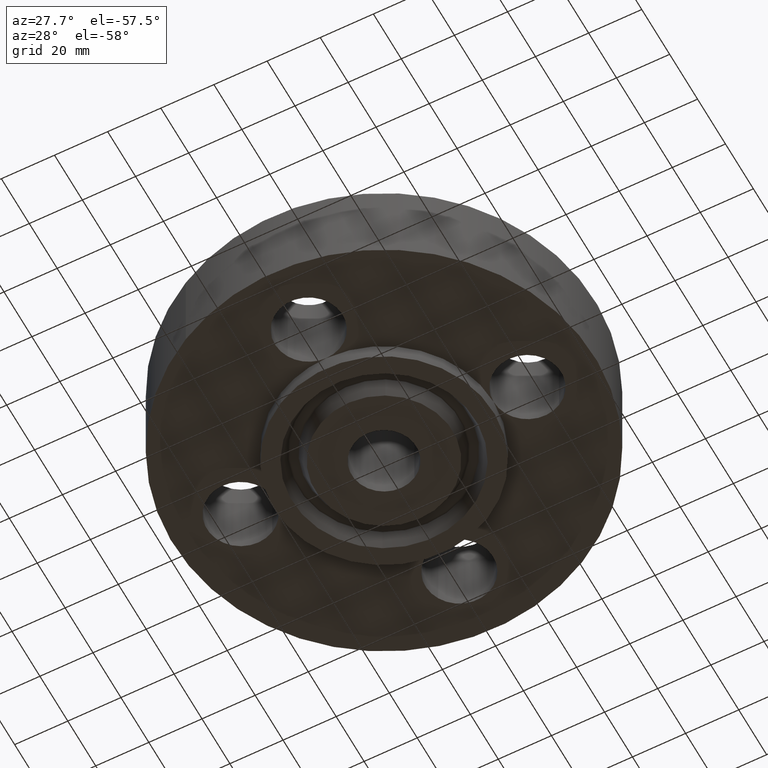
[diagram: clean part render]
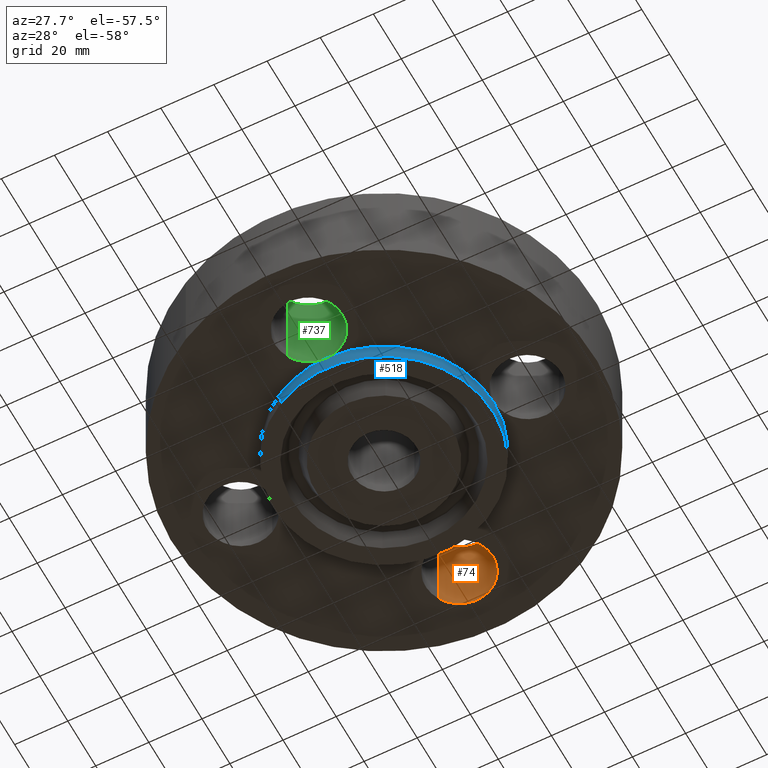
[diagram: same view with three faces highlighted in distinct colors, each labeled with its STEP entity id]
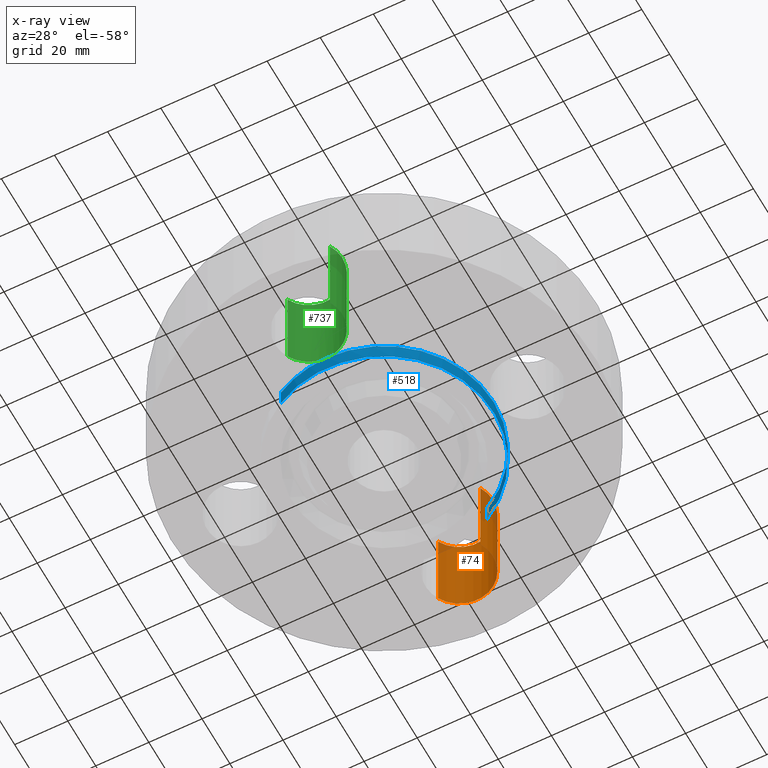
[diagram: x-ray of the same camera — body ghosted, the three highlighted faces saturated]
A machine part, auxiliary view with three faces highlighted in distinct colors.
The next image is the same camera in x-ray (body ghosted, the three faces saturated) — at least one of them is partly hidden behind the body in this view.
Their STEP definitions:

[orange] entity #74 — the highlighted cylindrical surface (partial cylindrical patch) has radius 12.7 mm, axis along (0, -0, -1).
#38=AXIS2_PLACEMENT_3D('Cylinder Axis2P3D',#35,#36,#37) ;
#51=AXIS2_PLACEMENT_3D('Circle Axis2P3D',#49,#50,$) ;
#65=AXIS2_PLACEMENT_3D('Circle Axis2P3D',#63,#64,$) ;
#35=CARTESIAN_POINT('Axis2P3D Location',(0.,2.12500000001,1.37606299213)) ;
#40=CARTESIAN_POINT('Line Origine',(-0.438791280947,2.36471276931,0.690000000003)) ;
#44=CARTESIAN_POINT('Vertex',(-0.438791280947,2.36471276931,0.)) ;
#46=CARTESIAN_POINT('Vertex',(-0.438791280947,2.36471276931,1.38000000001)) ;
#49=CARTESIAN_POINT('Axis2P3D Location',(0.,2.12500000001,0.)) ;
#53=CARTESIAN_POINT('Vertex',(0.438791280947,1.88528723071,0.)) ;
#56=CARTESIAN_POINT('Line Origine',(0.438791280947,1.88528723071,0.690000000003)) ;
#60=CARTESIAN_POINT('Vertex',(0.438791280947,1.88528723071,1.38000000001)) ;
#63=CARTESIAN_POINT('Axis2P3D Location',(0.,2.12500000001,1.38000000001)) ;
#36=DIRECTION('Axis2P3D Direction',(0.,-0.,-0.0393700787402)) ;
#37=DIRECTION('Axis2P3D XDirection',(0.0345504945626,-0.0188750212049,0.)) ;
#41=DIRECTION('Vector Direction',(0.,0.,-0.0393700787402)) ;
#50=DIRECTION('Axis2P3D Direction',(0.,-0.,-0.0393700787402)) ;
#57=DIRECTION('Vector Direction',(0.,0.,-0.0393700787402)) ;
#64=DIRECTION('Axis2P3D Direction',(0.,-0.,-0.0393700787402)) ;
#42=VECTOR('Line Direction',#41,0.0393700787402) ;
#58=VECTOR('Line Direction',#57,0.0393700787402) ;
#69=ORIENTED_EDGE('',*,*,#48,.F.) ;
#70=ORIENTED_EDGE('',*,*,#55,.T.) ;
#71=ORIENTED_EDGE('',*,*,#62,.T.) ;
#72=ORIENTED_EDGE('',*,*,#67,.F.) ;
#74=ADVANCED_FACE('PartBody',(#73),#39,.F.) ;
#52=CIRCLE('generated circle',#51,0.500000000002) ;
#66=CIRCLE('generated circle',#65,0.500000000002) ;
#39=CYLINDRICAL_SURFACE('generated cylinder',#38,0.500000000002) ;
#48=EDGE_CURVE('',#45,#47,#43,.F.) ;
#55=EDGE_CURVE('',#45,#54,#52,.T.) ;
#62=EDGE_CURVE('',#54,#61,#59,.F.) ;
#67=EDGE_CURVE('',#47,#61,#66,.T.) ;
#68=EDGE_LOOP('',(#69,#70,#71,#72)) ;
#73=FACE_OUTER_BOUND('',#68,.T.) ;
#43=LINE('Line',#40,#42) ;
#59=LINE('Line',#56,#58) ;
#45=VERTEX_POINT('',#44) ;
#47=VERTEX_POINT('',#46) ;
#54=VERTEX_POINT('',#53) ;
#61=VERTEX_POINT('',#60) ;

[blue] entity #518 — the highlighted cylindrical surface (partial cylindrical patch) has radius 41.275 mm, axis along (0, 0, -1).
#435=AXIS2_PLACEMENT_3D('Cylinder Axis2P3D',#432,#433,#434) ;
#488=AXIS2_PLACEMENT_3D('Circle Axis2P3D',#486,#487,$) ;
#493=AXIS2_PLACEMENT_3D('Circle Axis2P3D',#491,#492,$) ;
#500=AXIS2_PLACEMENT_3D('Circle Axis2P3D',#498,#499,$) ;
#507=AXIS2_PLACEMENT_3D('Circle Axis2P3D',#505,#506,$) ;
#432=CARTESIAN_POINT('Axis2P3D Location',(0.,0.,1.62500000001)) ;
#441=CARTESIAN_POINT('Vertex',(-0.779066500235,-1.42607166308,-0.250000000001)) ;
#443=CARTESIAN_POINT('Vertex',(0.779066500235,1.42607166308,-0.250000000001)) ;
#446=CARTESIAN_POINT('Line Origine',(-0.779066500235,-1.42607166308,-0.125000000001)) ;
#450=CARTESIAN_POINT('Vertex',(-0.779066500235,-1.42607166308,0.)) ;
#469=CARTESIAN_POINT('Vertex',(0.779066500235,1.42607166308,0.)) ;
#472=CARTESIAN_POINT('Line Origine',(0.779066500235,1.42607166308,-0.125000000001)) ;
#486=CARTESIAN_POINT('Axis2P3D Location',(0.,0.,-0.250000000001)) ;
#491=CARTESIAN_POINT('Axis2P3D Location',(0.,0.,0.)) ;
#495=CARTESIAN_POINT('Vertex',(1.62500000001,2.79741234551E-016,0.)) ;
#498=CARTESIAN_POINT('Axis2P3D Location',(0.,0.,0.)) ;
#502=CARTESIAN_POINT('Vertex',(2.05376551774E-016,-1.62500000001,0.)) ;
#505=CARTESIAN_POINT('Axis2P3D Location',(0.,0.,0.)) ;
#433=DIRECTION('Axis2P3D Direction',(0.,0.,-0.0393700787402)) ;
#434=DIRECTION('Axis2P3D XDirection',(0.0188750212049,0.0345504945626,0.)) ;
#447=DIRECTION('Vector Direction',(0.,0.,-0.0393700787402)) ;
#473=DIRECTION('Vector Direction',(0.,0.,-0.0393700787402)) ;
#487=DIRECTION('Axis2P3D Direction',(0.,0.,-0.0393700787402)) ;
#492=DIRECTION('Axis2P3D Direction',(0.,0.,-0.0393700787402)) ;
#499=DIRECTION('Axis2P3D Direction',(0.,0.,-0.0393700787402)) ;
#506=DIRECTION('Axis2P3D Direction',(0.,0.,-0.0393700787402)) ;
#448=VECTOR('Line Direction',#447,0.0393700787402) ;
#474=VECTOR('Line Direction',#473,0.0393700787402) ;
#511=ORIENTED_EDGE('',*,*,#490,.F.) ;
#512=ORIENTED_EDGE('',*,*,#476,.T.) ;
#513=ORIENTED_EDGE('',*,*,#497,.T.) ;
#514=ORIENTED_EDGE('',*,*,#504,.T.) ;
#515=ORIENTED_EDGE('',*,*,#509,.T.) ;
#516=ORIENTED_EDGE('',*,*,#452,.F.) ;
#518=ADVANCED_FACE('PartBody',(#517),#436,.T.) ;
#489=CIRCLE('generated circle',#488,1.62500000001) ;
#494=CIRCLE('generated circle',#493,1.62500000001) ;
#501=CIRCLE('generated circle',#500,1.62500000001) ;
#508=CIRCLE('generated circle',#507,1.62500000001) ;
#436=CYLINDRICAL_SURFACE('generated cylinder',#435,1.62500000001) ;
#452=EDGE_CURVE('',#442,#451,#449,.F.) ;
#476=EDGE_CURVE('',#444,#470,#475,.F.) ;
#490=EDGE_CURVE('',#444,#442,#489,.T.) ;
#497=EDGE_CURVE('',#470,#496,#494,.T.) ;
#504=EDGE_CURVE('',#496,#503,#501,.T.) ;
#509=EDGE_CURVE('',#503,#451,#508,.T.) ;
#510=EDGE_LOOP('',(#511,#512,#513,#514,#515,#516)) ;
#517=FACE_OUTER_BOUND('',#510,.T.) ;
#449=LINE('Line',#446,#448) ;
#475=LINE('Line',#472,#474) ;
#442=VERTEX_POINT('',#441) ;
#444=VERTEX_POINT('',#443) ;
#451=VERTEX_POINT('',#450) ;
#470=VERTEX_POINT('',#469) ;
#496=VERTEX_POINT('',#495) ;
#503=VERTEX_POINT('',#502) ;

[green] entity #737 — the highlighted cylindrical surface (partial cylindrical patch) has radius 12.7 mm, axis along (-0, 0, -1).
#530=AXIS2_PLACEMENT_3D('Circle Axis2P3D',#528,#529,$) ;
#544=AXIS2_PLACEMENT_3D('Circle Axis2P3D',#542,#543,$) ;
#697=AXIS2_PLACEMENT_3D('Cylinder Axis2P3D',#694,#695,#696) ;
#727=AXIS2_PLACEMENT_3D('Circle Axis2P3D',#725,#726,$) ;
#502=CARTESIAN_POINT('Vertex',(2.05376551774E-016,-1.62500000001,0.)) ;
#528=CARTESIAN_POINT('Axis2P3D Location',(2.97225061711E-016,-2.12500000001,0.)) ;
#532=CARTESIAN_POINT('Vertex',(-0.438791280947,-1.88528723071,0.)) ;
#539=CARTESIAN_POINT('Vertex',(0.438791280947,-2.36471276931,0.)) ;
#542=CARTESIAN_POINT('Axis2P3D Location',(2.97225061711E-016,-2.12500000001,0.)) ;
#694=CARTESIAN_POINT('Axis2P3D Location',(2.6023744482E-016,-2.12500000001,1.37606299213)) ;
#699=CARTESIAN_POINT('Line Origine',(0.438791280947,-2.36471276931,0.690000000003)) ;
#703=CARTESIAN_POINT('Vertex',(0.438791280947,-2.36471276931,1.38000000001)) ;
#706=CARTESIAN_POINT('Line Origine',(-0.438791280947,-1.88528723071,0.690000000003)) ;
#710=CARTESIAN_POINT('Vertex',(-0.438791280947,-1.88528723071,1.38000000001)) ;
#725=CARTESIAN_POINT('Axis2P3D Location',(2.6023744482E-016,-2.12500000001,1.38000000001)) ;
#529=DIRECTION('Axis2P3D Direction',(0.,0.,-0.0393700787402)) ;
#543=DIRECTION('Axis2P3D Direction',(0.,0.,-0.0393700787402)) ;
#695=DIRECTION('Axis2P3D Direction',(-0.,0.,-0.0393700787402)) ;
#696=DIRECTION('Axis2P3D XDirection',(-0.0345504945626,0.0188750212049,0.)) ;
#700=DIRECTION('Vector Direction',(0.,0.,-0.0393700787402)) ;
#707=DIRECTION('Vector Direction',(0.,0.,-0.0393700787402)) ;
#726=DIRECTION('Axis2P3D Direction',(-0.,0.,-0.0393700787402)) ;
#701=VECTOR('Line Direction',#700,0.0393700787402) ;
#708=VECTOR('Line Direction',#707,0.0393700787402) ;
#731=ORIENTED_EDGE('',*,*,#712,.F.) ;
#732=ORIENTED_EDGE('',*,*,#534,.T.) ;
#733=ORIENTED_EDGE('',*,*,#546,.T.) ;
#734=ORIENTED_EDGE('',*,*,#705,.T.) ;
#735=ORIENTED_EDGE('',*,*,#729,.F.) ;
#737=ADVANCED_FACE('PartBody',(#736),#698,.F.) ;
#531=CIRCLE('generated circle',#530,0.500000000002) ;
#545=CIRCLE('generated circle',#544,0.500000000002) ;
#728=CIRCLE('generated circle',#727,0.500000000002) ;
#698=CYLINDRICAL_SURFACE('generated cylinder',#697,0.500000000002) ;
#534=EDGE_CURVE('',#533,#503,#531,.T.) ;
#546=EDGE_CURVE('',#503,#540,#545,.T.) ;
#705=EDGE_CURVE('',#540,#704,#702,.F.) ;
#712=EDGE_CURVE('',#533,#711,#709,.F.) ;
#729=EDGE_CURVE('',#711,#704,#728,.T.) ;
#730=EDGE_LOOP('',(#731,#732,#733,#734,#735)) ;
#736=FACE_OUTER_BOUND('',#730,.T.) ;
#702=LINE('Line',#699,#701) ;
#709=LINE('Line',#706,#708) ;
#503=VERTEX_POINT('',#502) ;
#533=VERTEX_POINT('',#532) ;
#540=VERTEX_POINT('',#539) ;
#704=VERTEX_POINT('',#703) ;
#711=VERTEX_POINT('',#710) ;